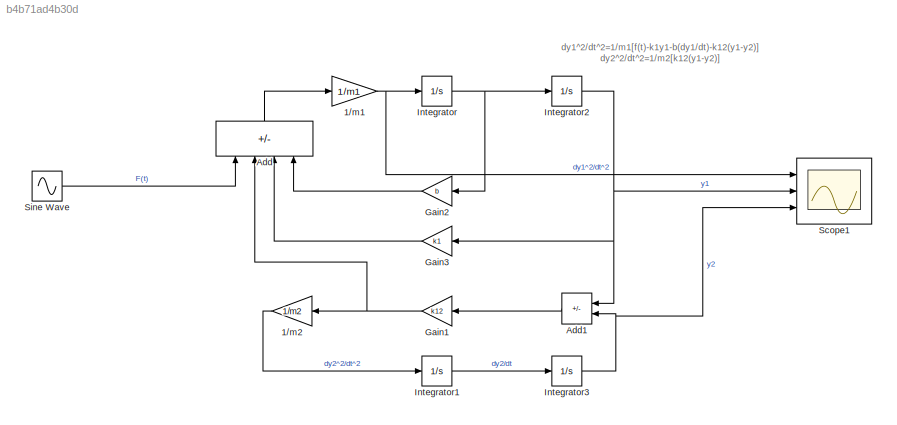
MODEL slx_b4b71ad4b30d
KIND model
CONFIG AbsTol = auto
CONFIG EnableMultiTasking = off
CONFIG FixedStep = auto
CONFIG MaxStep = auto
CONFIG MinStep = auto
CONFIG RelTol = 1e-3
CONFIG SampleTimeConstraint = Unconstrained
CONFIG SolverName = ode45
CONFIG StartTime = 0.0
CONFIG StopTime = 30
WORKSPACE source: mxarray member
WORKSPACE b: Simulink.Parameter (value not decoded)
WORKSPACE k1: Simulink.Parameter (value not decoded)
WORKSPACE k12: Simulink.Parameter (value not decoded)
WORKSPACE m1: Simulink.Parameter (value not decoded)
WORKSPACE m2: Simulink.Parameter (value not decoded)
BLOCK [Gain] 1//m1
  Gain = 1/m1
BLOCK [Gain] 1//m2
  Gain = 1/m2
  NameLocation = top
BLOCK [Sum] Add
  IconShape = rectangular
  Inputs = +---
  NameLocation = right
  Ports = [4, 1]
BLOCK [Sum] Add1
  IconShape = rectangular
  Inputs = +-
  NameLocation = top
  Ports = [2, 1]
BLOCK [Gain] Gain1
  Gain = k12
  NameLocation = top
BLOCK [Gain] Gain2
  Gain = b
  NameLocation = top
BLOCK [Gain] Gain3
  Gain = k1
  NameLocation = top
BLOCK [Integrator] Integrator
  Ports = [1, 1]
BLOCK [Integrator] Integrator1
  Ports = [1, 1]
BLOCK [Integrator] Integrator2
  Ports = [1, 1]
BLOCK [Integrator] Integrator3
  Ports = [1, 1]
BLOCK [Scope] Scope1
  Floating = off
  NumInputPorts = 3
  Ports = [3]
  ScopeSpecificationString = Simulink.scopes.TimeScopeBlockCfg('CurrentConfiguration', extmgr.ConfigurationSet(extmgr.Configuration('Core','General UI',true),extmgr.Configuration('Core','Source UI',true),extmgr.Configuration('Sources','WiredSimulink',true,'DataLoggingVariableName','ScopeData1'),extmgr.Configuration('Visuals','Time Domain',true,'SerializedDisplays',{struct('MinYLimReal','-0.00869','MaxYLimReal','0.00905','YLab...<+2792ch>
BLOCK [Sin] Sine Wave
  Amplitude = 2
  Frequency = 10
  Ports = [0, 1]
  SampleTime = 0
ANNOTATION (root): dy1^2/dt^2=1/m1[f(t)-k1y1-b(dy1/dt)-k12(y1-y2)] dy2^2/dt^2=1/m2[k12(y1-y2)]
NET 1//m1:1 -> Integrator:1, Scope1:1
LINE 1//m2:1 -> Integrator1:1
LINE Add1:1 -> Gain1:1
LINE Add:1 -> 1//m1:1
NET Gain1:1 -> 1//m2:1, Add:2
LINE Gain2:1 -> Add:4
LINE Gain3:1 -> Add:3
LINE Integrator1:1 -> Integrator3:1
NET Integrator2:1 -> Add1:1, Gain3:1, Scope1:2
NET Integrator3:1 -> Add1:2, Scope1:3
NET Integrator:1 -> Gain2:1, Integrator2:1
LINE Sine Wave:1 -> Add:1
note: NET lines group one-source signal fan-out (src -> all destinations, sorted); 1:1 wires keep LINE
